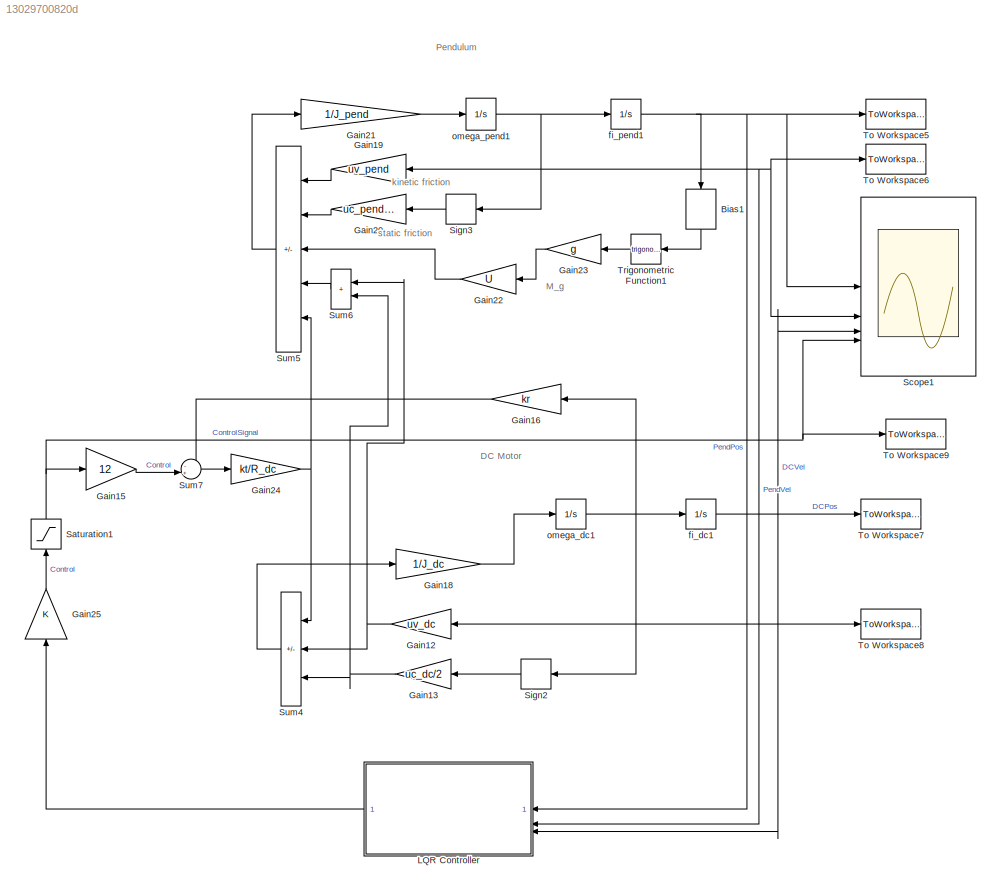
MODEL slx_13029700820d
KIND model
CONFIG AbsTol = auto
CONFIG EnableMultiTasking = off
CONFIG FixedStep = auto
CONFIG MaxStep = 1e-2
CONFIG MinStep = auto
CONFIG RelTol = 1e-3
CONFIG SampleTimeConstraint = Unconstrained
CONFIG SolverName = ode23
CONFIG StartTime = 0.0
CONFIG StopTime = 50
BLOCK [Bias] Bias1
  Bias = pi
  NameLocation = left
  SaturateOnIntegerOverflow = off
BLOCK [Gain] Gain12
  Gain = uv_dc
  NameLocation = top
BLOCK [Gain] Gain13
  Gain = uc_dc/2
  NameLocation = top
BLOCK [Gain] Gain15
  Gain = 12
BLOCK [Gain] Gain16
  Gain = kr
BLOCK [Gain] Gain18
  Gain = 1/J_dc
BLOCK [Gain] Gain19
  Gain = uv_pend
  NameLocation = top
BLOCK [Gain] Gain20
  Gain = uc_pend/10
  NameLocation = top
BLOCK [Gain] Gain21
  Gain = 1/J_pend
BLOCK [Gain] Gain22
  Gain = U
  NameLocation = top
BLOCK [Gain] Gain23
  Gain = g
  NameLocation = top
BLOCK [Gain] Gain24
  Gain = kt/R_dc
BLOCK [Gain] Gain25
  NameLocation = right
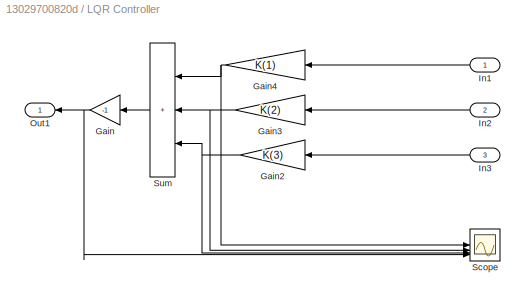
BLOCK [SubSystem] LQR Controller
  NameLocation = top
BLOCK [Gain] LQR Controller/Gain
  Gain = -1
  NameLocation = top
BLOCK [Gain] LQR Controller/Gain2
  Gain = K(3)
  NameLocation = top
BLOCK [Gain] LQR Controller/Gain3
  Gain = K(2)
  NameLocation = top
BLOCK [Gain] LQR Controller/Gain4
  Gain = K(1)
  NameLocation = top
BLOCK [Inport] LQR Controller/In1
  NameLocation = top
BLOCK [Inport] LQR Controller/In2
  NameLocation = top
  Port = 2
BLOCK [Inport] LQR Controller/In3
  NameLocation = top
  Port = 3
BLOCK [Outport] LQR Controller/Out1
  NameLocation = top
  VectorParamsAs1DForOutWhenUnconnected = off
BLOCK [Scope] LQR Controller/Scope
  Floating = off
  NumInputPorts = 4
  ScopeSpecificationString = Simulink.scopes.TimeScopeBlockCfg('CurrentConfiguration', extmgr.ConfigurationSet(extmgr.Configuration('Core','General UI',true),extmgr.Configuration('Core','Source UI',true),extmgr.Configuration('Sources','WiredSimulink',true,'DataLoggingVariableName','ScopeData1'),extmgr.Configuration('Visuals','Time Domain',true,'SerializedDisplays',{struct('MinYLimReal','-11.95532','MaxYLimReal','5.44592','YLa...<+3770ch>
BLOCK [Sum] LQR Controller/Sum
  IconShape = rectangular
  Inputs = +++
  NameLocation = top
BLOCK [Saturate] Saturation1
  LowerLimit = -1
  NameLocation = right
  UpperLimit = 1
BLOCK [Scope] Scope1
  Floating = off
  NumInputPorts = 4
  ScopeSpecificationString = Simulink.scopes.TimeScopeBlockCfg('CurrentConfiguration', extmgr.ConfigurationSet(extmgr.Configuration('Core','General UI',true),extmgr.Configuration('Core','Source UI',true),extmgr.Configuration('Sources','WiredSimulink',true,'DataLoggingVariableName','ScopeData1'),extmgr.Configuration('Visuals','Time Domain',true,'SerializedDisplays',{struct('MinYLimReal','-0.27914','MaxYLimReal','0.61279','YLab...<+5333ch>
BLOCK [Signum] Sign2
  NameLocation = top
  ZeroCross = off
BLOCK [Signum] Sign3
  NameLocation = top
  ZeroCross = off
BLOCK [Sum] Sum4
  IconShape = rectangular
  Inputs = +--
  NameLocation = top
BLOCK [Sum] Sum5
  IconShape = rectangular
  Inputs = ---+-
  NameLocation = top
BLOCK [Sum] Sum6
  IconShape = rectangular
  NameLocation = top
BLOCK [Sum] Sum7
  Inputs = -+|
BLOCK [ToWorkspace] To Workspace5
  FixptAsFi = on
  MaxDataPoints = inf
  SampleTime = -1
  SaveFormat = Structure With Time
  VariableName = PendPos
BLOCK [ToWorkspace] To Workspace6
  FixptAsFi = on
  MaxDataPoints = inf
  SampleTime = -1
  SaveFormat = Structure With Time
  VariableName = PendVel
BLOCK [ToWorkspace] To Workspace7
  FixptAsFi = on
  MaxDataPoints = inf
  SampleTime = -1
  SaveFormat = Structure With Time
  VariableName = dcPos
BLOCK [ToWorkspace] To Workspace8
  FixptAsFi = on
  MaxDataPoints = inf
  SampleTime = -1
  SaveFormat = Structure With Time
  VariableName = dcVel
BLOCK [ToWorkspace] To Workspace9
  FixptAsFi = on
  MaxDataPoints = inf
  SampleTime = -1
  SaveFormat = Structure With Time
  VariableName = Control
BLOCK [Trigonometry] Trigonometric Function1
  NameLocation = top
BLOCK [Integrator] fi_dc1
  InitialCondition = fi_dc0
BLOCK [Integrator] fi_pend1
  InitialCondition = deg2rad(30)
BLOCK [Integrator] omega_dc1
  InitialCondition = 0%deg2rad(25000)
BLOCK [Integrator] omega_pend1
  InitialCondition = 0%deg2rad(30)
ANNOTATION (root): DC Motor
ANNOTATION (root): Pendulum
ANNOTATION (root): M_g
ANNOTATION (root): kinetic friction
ANNOTATION (root): static friction
LINE Bias1:1 -> Trigonometric Function1:1
NET Gain12:1 -> Sum4:2, Sum6:1
NET Gain13:1 -> Sum4:3, Sum6:2
LINE Gain15:1 -> Sum7:2
LINE Gain16:1 -> Sum7:1
LINE Gain18:1 -> omega_dc1:1
LINE Gain19:1 -> Sum5:1
LINE Gain20:1 -> Sum5:2
LINE Gain21:1 -> omega_pend1:1
LINE Gain22:1 -> Sum5:3
LINE Gain23:1 -> Gain22:1
NET Gain24:1 -> Sum4:1, Sum5:5
LINE Gain25:1 -> Saturation1:1
NET LQR Controller/Gain2:1 -> LQR Controller/Scope:3, LQR Controller/Sum:3
NET LQR Controller/Gain3:1 -> LQR Controller/Scope:2, LQR Controller/Sum:2
NET LQR Controller/Gain4:1 -> LQR Controller/Scope:1, LQR Controller/Sum:1
NET LQR Controller/Gain:1 -> LQR Controller/Out1:1, LQR Controller/Scope:4
LINE LQR Controller/In1:1 -> LQR Controller/Gain4:1
LINE LQR Controller/In2:1 -> LQR Controller/Gain3:1
LINE LQR Controller/In3:1 -> LQR Controller/Gain2:1
LINE LQR Controller/Sum:1 -> LQR Controller/Gain:1
LINE LQR Controller:1 -> Gain25:1
NET Saturation1:1 -> Gain15:1, Scope1:4, To Workspace9:1
LINE Sign2:1 -> Gain13:1
LINE Sign3:1 -> Gain20:1
LINE Sum4:1 -> Gain18:1
LINE Sum5:1 -> Gain21:1
LINE Sum6:1 -> Sum5:4
LINE Sum7:1 -> Gain24:1
LINE Trigonometric Function1:1 -> Gain23:1
LINE fi_dc1:1 -> To Workspace7:1
NET fi_pend1:1 -> Bias1:1, LQR Controller:1, Scope1:1, To Workspace5:1
NET omega_dc1:1 -> Gain12:1, Gain16:1, LQR Controller:3, Scope1:3, Sign2:1, To Workspace8:1, fi_dc1:1
NET omega_pend1:1 -> Gain19:1, LQR Controller:2, Scope1:2, Sign3:1, To Workspace6:1, fi_pend1:1
note: NET lines group one-source signal fan-out (src -> all destinations, sorted); 1:1 wires keep LINE
